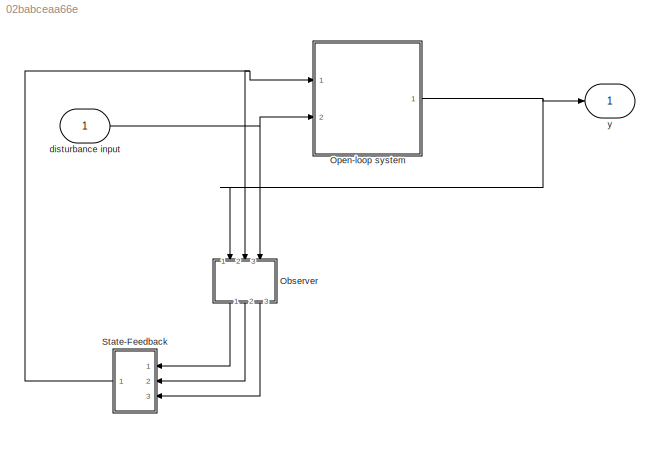
MODEL slx_02babceaa66e
KIND model
CONFIG AbsTol = auto
CONFIG FixedStep = auto
CONFIG MaxStep = auto
CONFIG MinStep = auto
CONFIG RelTol = 1e-3
CONFIG SampleTimeConstraint = Unconstrained
CONFIG Solver = ode45
CONFIG SolverMode = Auto
CONFIG SolverName = ode45
CONFIG StartTime = 0.0
CONFIG StopTime = 10.0
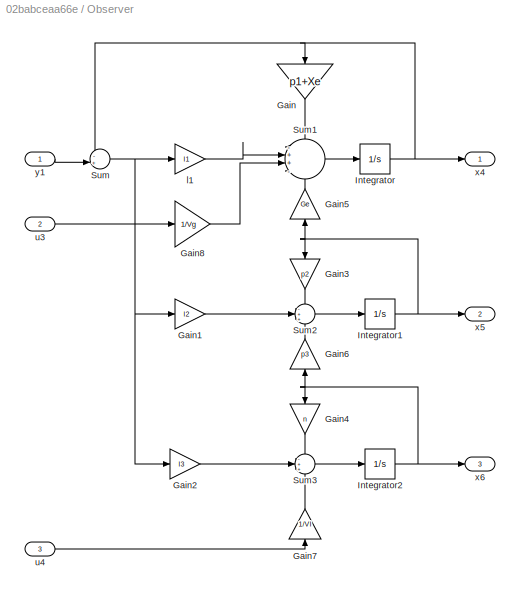
BLOCK [SubSystem] Observer
  Ports = [3, 3]
  RequestExecContextInheritance = off
BLOCK [Gain] Observer/Gain
  Gain = p1+Xe
  OutDataTypeStr = Inherit: Inherit via internal rule
  ParamDataTypeStr = Inherit: Inherit via internal rule
  SaturateOnIntegerOverflow = off
BLOCK [Gain] Observer/Gain1
  Gain = l2
  OutDataTypeStr = Inherit: Inherit via internal rule
  ParamDataTypeStr = Inherit: Inherit via internal rule
  SaturateOnIntegerOverflow = off
BLOCK [Gain] Observer/Gain2
  Gain = l3
  OutDataTypeStr = Inherit: Inherit via internal rule
  ParamDataTypeStr = Inherit: Inherit via internal rule
  SaturateOnIntegerOverflow = off
BLOCK [Gain] Observer/Gain3
  Gain = p2
  OutDataTypeStr = Inherit: Inherit via internal rule
  ParamDataTypeStr = Inherit: Inherit via internal rule
  SaturateOnIntegerOverflow = off
BLOCK [Gain] Observer/Gain4
  Gain = n
  OutDataTypeStr = Inherit: Inherit via internal rule
  ParamDataTypeStr = Inherit: Inherit via internal rule
  SaturateOnIntegerOverflow = off
BLOCK [Gain] Observer/Gain5
  Gain = Ge
  OutDataTypeStr = Inherit: Inherit via internal rule
  ParamDataTypeStr = Inherit: Inherit via internal rule
  SaturateOnIntegerOverflow = off
BLOCK [Gain] Observer/Gain6
  Gain = p3
  OutDataTypeStr = Inherit: Inherit via internal rule
  ParamDataTypeStr = Inherit: Inherit via internal rule
  SaturateOnIntegerOverflow = off
BLOCK [Gain] Observer/Gain7
  Gain = 1/VI
  OutDataTypeStr = Inherit: Inherit via internal rule
  ParamDataTypeStr = Inherit: Inherit via internal rule
  SaturateOnIntegerOverflow = off
BLOCK [Gain] Observer/Gain8
  Gain = 1/Vg
  OutDataTypeStr = Inherit: Inherit via internal rule
  ParamDataTypeStr = Inherit: Inherit via internal rule
  SaturateOnIntegerOverflow = off
BLOCK [Integrator] Observer/Integrator
  Ports = [1, 1]
BLOCK [Integrator] Observer/Integrator1
  Ports = [1, 1]
BLOCK [Integrator] Observer/Integrator2
  Ports = [1, 1]
BLOCK [Sum] Observer/Sum
  IconShape = round
  InputSameDT = off
  Inputs = -+|
  OutDataTypeStr = Inherit: Inherit via internal rule
  Ports = [2, 1]
  SaturateOnIntegerOverflow = off
BLOCK [Sum] Observer/Sum1
  IconShape = round
  InputSameDT = off
  Inputs = -++-
  OutDataTypeStr = Inherit: Inherit via internal rule
  Ports = [4, 1]
  SaturateOnIntegerOverflow = off
BLOCK [Sum] Observer/Sum2
  IconShape = round
  InputSameDT = off
  Inputs = -++
  OutDataTypeStr = Inherit: Inherit via internal rule
  Ports = [3, 1]
  SaturateOnIntegerOverflow = off
BLOCK [Sum] Observer/Sum3
  IconShape = round
  InputSameDT = off
  Inputs = -++
  OutDataTypeStr = Inherit: Inherit via internal rule
  Ports = [3, 1]
  SaturateOnIntegerOverflow = off
BLOCK [Gain] Observer/l1
  Gain = l1
  OutDataTypeStr = Inherit: Inherit via internal rule
  ParamDataTypeStr = Inherit: Inherit via internal rule
  SaturateOnIntegerOverflow = off
BLOCK [Inport] Observer/u3
  IconDisplay = Port number
  Port = 2
BLOCK [Inport] Observer/u4
  IconDisplay = Port number
  Port = 3
BLOCK [Outport] Observer/x4
  IconDisplay = Port number
BLOCK [Outport] Observer/x5
  IconDisplay = Port number
  Port = 2
BLOCK [Outport] Observer/x6
  IconDisplay = Port number
  Port = 3
BLOCK [Inport] Observer/y1
  IconDisplay = Port number
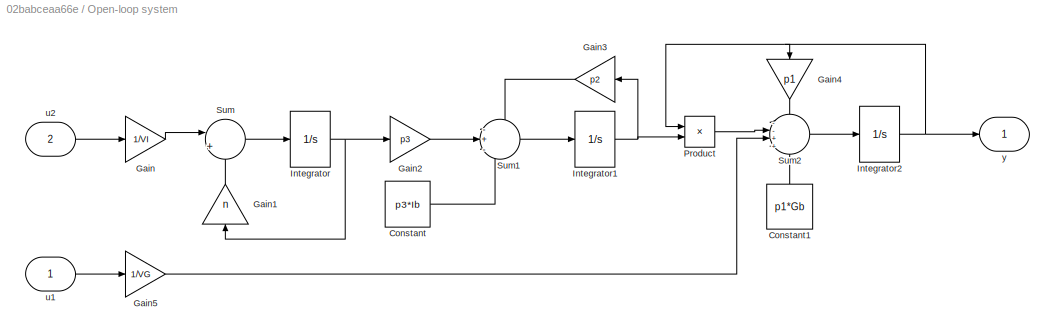
BLOCK [SubSystem] Open-loop system
  Ports = [2, 1]
  RequestExecContextInheritance = off
BLOCK [Gain] Open-loop system/ Gain
  Gain = 1/VI
  OutDataTypeStr = Inherit: Inherit via internal rule
  ParamDataTypeStr = Inherit: Inherit via internal rule
  SaturateOnIntegerOverflow = off
BLOCK [Gain] Open-loop system/ Gain2
  Gain = p3
  OutDataTypeStr = Inherit: Inherit via internal rule
  ParamDataTypeStr = Inherit: Inherit via internal rule
  SaturateOnIntegerOverflow = off
BLOCK [Gain] Open-loop system/ Gain3
  Gain = p2
  OutDataTypeStr = Inherit: Inherit via internal rule
  ParamDataTypeStr = Inherit: Inherit via internal rule
  SaturateOnIntegerOverflow = off
BLOCK [Gain] Open-loop system/ Gain4
  Gain = p1
  OutDataTypeStr = Inherit: Inherit via internal rule
  ParamDataTypeStr = Inherit: Inherit via internal rule
  SaturateOnIntegerOverflow = off
BLOCK [Gain] Open-loop system/ Gain5
  Gain = 1/VG
  OutDataTypeStr = Inherit: Inherit via internal rule
  ParamDataTypeStr = Inherit: Inherit via internal rule
  SaturateOnIntegerOverflow = off
BLOCK [Constant] Open-loop system/Constant
  Value = p3*Ib
BLOCK [Constant] Open-loop system/Constant1
  Value = p1*Gb
BLOCK [Gain] Open-loop system/Gain1
  Gain = n
  OutDataTypeStr = Inherit: Inherit via internal rule
  ParamDataTypeStr = Inherit: Inherit via internal rule
  SaturateOnIntegerOverflow = off
BLOCK [Integrator] Open-loop system/Integrator
  Ports = [1, 1]
BLOCK [Integrator] Open-loop system/Integrator1
  Ports = [1, 1]
BLOCK [Integrator] Open-loop system/Integrator2
  Ports = [1, 1]
BLOCK [Product] Open-loop system/Product
  InputSameDT = off
  OutDataTypeStr = Inherit: Inherit via internal rule
  Ports = [2, 1]
  RndMeth = Floor
  SaturateOnIntegerOverflow = off
BLOCK [Sum] Open-loop system/Sum
  IconShape = round
  InputSameDT = off
  Inputs = |+-
  OutDataTypeStr = Inherit: Inherit via internal rule
  Ports = [2, 1]
  SaturateOnIntegerOverflow = off
BLOCK [Sum] Open-loop system/Sum1
  IconShape = round
  InputSameDT = off
  Inputs = -+-
  OutDataTypeStr = Inherit: Inherit via internal rule
  Ports = [3, 1]
  SaturateOnIntegerOverflow = off
BLOCK [Sum] Open-loop system/Sum2
  IconShape = round
  InputSameDT = off
  Inputs = --++
  OutDataTypeStr = Inherit: Inherit via internal rule
  Ports = [4, 1]
  SaturateOnIntegerOverflow = off
BLOCK [Inport] Open-loop system/u1
  IconDisplay = Port number
BLOCK [Inport] Open-loop system/u2
  IconDisplay = Port number
  Port = 2
BLOCK [Outport] Open-loop system/y
  IconDisplay = Port number
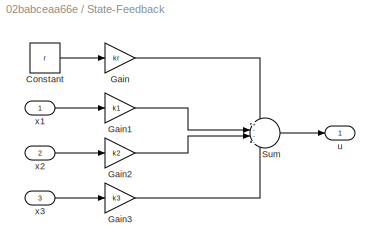
BLOCK [SubSystem] State-Feedback
  Ports = [3, 1]
  RequestExecContextInheritance = off
BLOCK [Constant] State-Feedback/Constant
  Value = r
BLOCK [Gain] State-Feedback/Gain
  Gain = kr
  OutDataTypeStr = Inherit: Inherit via internal rule
  ParamDataTypeStr = Inherit: Inherit via internal rule
  SaturateOnIntegerOverflow = off
BLOCK [Gain] State-Feedback/Gain1
  Gain = k1
  OutDataTypeStr = Inherit: Inherit via internal rule
  ParamDataTypeStr = Inherit: Inherit via internal rule
  SaturateOnIntegerOverflow = off
BLOCK [Gain] State-Feedback/Gain2
  Gain = k2
  OutDataTypeStr = Inherit: Inherit via internal rule
  ParamDataTypeStr = Inherit: Inherit via internal rule
  SaturateOnIntegerOverflow = off
BLOCK [Gain] State-Feedback/Gain3
  Gain = k3
  OutDataTypeStr = Inherit: Inherit via internal rule
  ParamDataTypeStr = Inherit: Inherit via internal rule
  SaturateOnIntegerOverflow = off
BLOCK [Sum] State-Feedback/Sum
  IconShape = round
  InputSameDT = off
  Inputs = +---
  OutDataTypeStr = Inherit: Inherit via internal rule
  Ports = [4, 1]
  SaturateOnIntegerOverflow = off
BLOCK [Outport] State-Feedback/u
  IconDisplay = Port number
BLOCK [Inport] State-Feedback/x1
  IconDisplay = Port number
BLOCK [Inport] State-Feedback/x2
  IconDisplay = Port number
  Port = 2
BLOCK [Inport] State-Feedback/x3
  IconDisplay = Port number
  Port = 3
BLOCK [Inport] disturbance input
  IconDisplay = Port number
BLOCK [Outport] y
  IconDisplay = Port number
LINE Observer/Gain1:1 -> Observer/Sum2:2
LINE Observer/Gain2:1 -> Observer/Sum3:2
LINE Observer/Gain3:1 -> Observer/Sum2:1
LINE Observer/Gain4:1 -> Observer/Sum3:1
LINE Observer/Gain5:1 -> Observer/Sum1:4
LINE Observer/Gain6:1 -> Observer/Sum2:3
LINE Observer/Gain7:1 -> Observer/Sum3:3
LINE Observer/Gain8:1 -> Observer/Sum1:3
LINE Observer/Gain:1 -> Observer/Sum1:1
NET Observer/Integrator1:1 -> Observer/Gain3:1, Observer/Gain5:1, Observer/x5:1
NET Observer/Integrator2:1 -> Observer/Gain4:1, Observer/Gain6:1, Observer/x6:1
NET Observer/Integrator:1 -> Observer/Gain:1, Observer/Sum:1, Observer/x4:1
LINE Observer/Sum1:1 -> Observer/Integrator:1
LINE Observer/Sum2:1 -> Observer/Integrator1:1
LINE Observer/Sum3:1 -> Observer/Integrator2:1
NET Observer/Sum:1 -> Observer/Gain1:1, Observer/Gain2:1, Observer/l1:1
LINE Observer/l1:1 -> Observer/Sum1:2
LINE Observer/u3:1 -> Observer/Gain8:1
LINE Observer/u4:1 -> Observer/Gain7:1
LINE Observer/y1:1 -> Observer/Sum:2
LINE Observer:1 -> State-Feedback:1
LINE Observer:2 -> State-Feedback:2
LINE Observer:3 -> State-Feedback:3
LINE Open-loop system/ Gain2:1 -> Open-loop system/Sum1:2
LINE Open-loop system/ Gain3:1 -> Open-loop system/Sum1:1
LINE Open-loop system/ Gain4:1 -> Open-loop system/Sum2:1
LINE Open-loop system/ Gain5:1 -> Open-loop system/Sum2:3
LINE Open-loop system/ Gain:1 -> Open-loop system/Sum:1
LINE Open-loop system/Constant1:1 -> Open-loop system/Sum2:4
LINE Open-loop system/Constant:1 -> Open-loop system/Sum1:3
LINE Open-loop system/Gain1:1 -> Open-loop system/Sum:2
NET Open-loop system/Integrator1:1 -> Open-loop system/ Gain3:1, Open-loop system/Product:2
NET Open-loop system/Integrator2:1 -> Open-loop system/ Gain4:1, Open-loop system/Product:1, Open-loop system/y:1
NET Open-loop system/Integrator:1 -> Open-loop system/ Gain2:1, Open-loop system/Gain1:1
LINE Open-loop system/Product:1 -> Open-loop system/Sum2:2
LINE Open-loop system/Sum1:1 -> Open-loop system/Integrator1:1
LINE Open-loop system/Sum2:1 -> Open-loop system/Integrator2:1
LINE Open-loop system/Sum:1 -> Open-loop system/Integrator:1
LINE Open-loop system/u1:1 -> Open-loop system/ Gain5:1
LINE Open-loop system/u2:1 -> Open-loop system/ Gain:1
NET Open-loop system:1 -> Observer:1, y:1
LINE State-Feedback/Constant:1 -> State-Feedback/Gain:1
LINE State-Feedback/Gain1:1 -> State-Feedback/Sum:2
LINE State-Feedback/Gain2:1 -> State-Feedback/Sum:3
LINE State-Feedback/Gain3:1 -> State-Feedback/Sum:4
LINE State-Feedback/Gain:1 -> State-Feedback/Sum:1
LINE State-Feedback/Sum:1 -> State-Feedback/u:1
LINE State-Feedback/x1:1 -> State-Feedback/Gain1:1
LINE State-Feedback/x2:1 -> State-Feedback/Gain2:1
LINE State-Feedback/x3:1 -> State-Feedback/Gain3:1
NET State-Feedback:1 -> Observer:2, Open-loop system:1
NET disturbance input:1 -> Observer:3, Open-loop system:2
note: NET lines group one-source signal fan-out (src -> all destinations, sorted); 1:1 wires keep LINE
